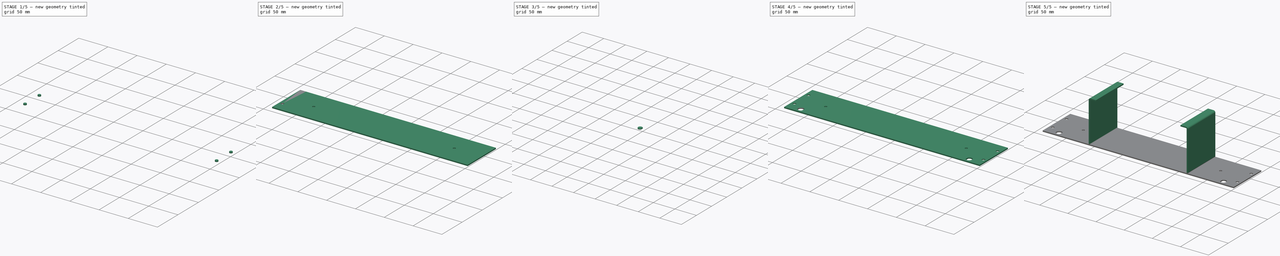
[diagram: build sequence overview — one tinted view per stage of 5, left to right]
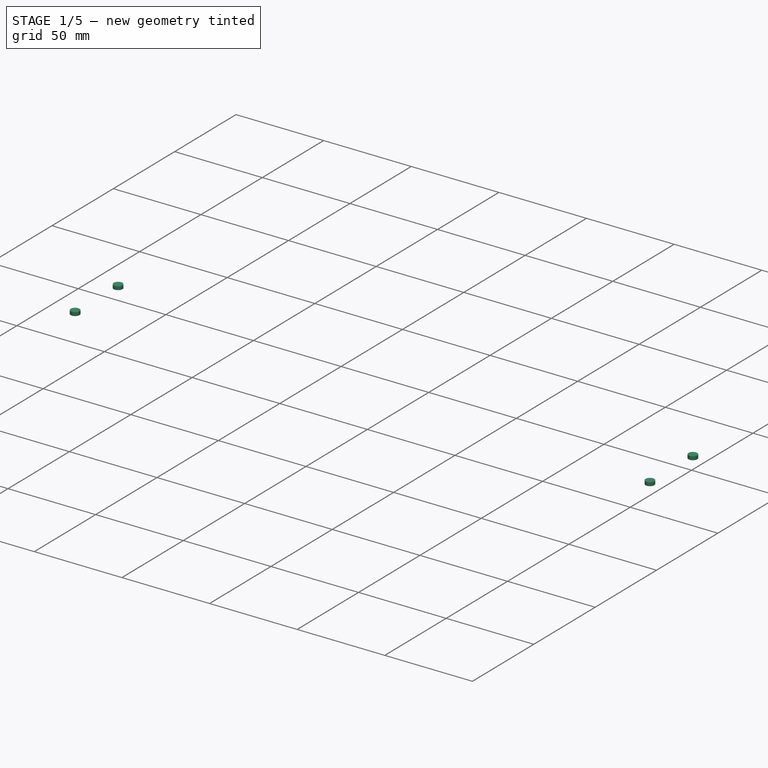
[diagram: stage 1 of 5 — iso view after this stage's code; geometry added in this stage tinted green]
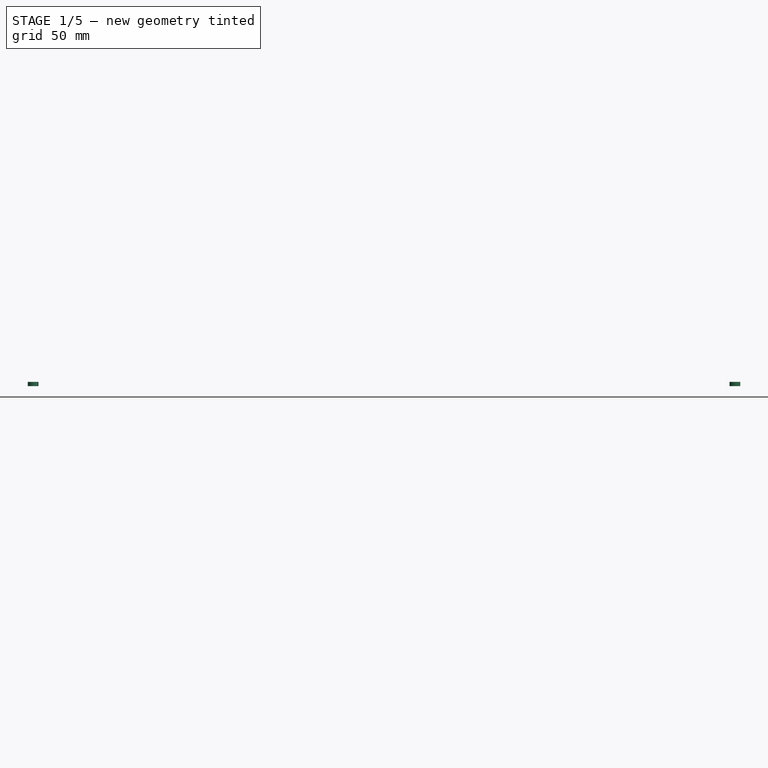
[diagram: stage 1 of 5 — front view after this stage's code; geometry added in this stage tinted green]
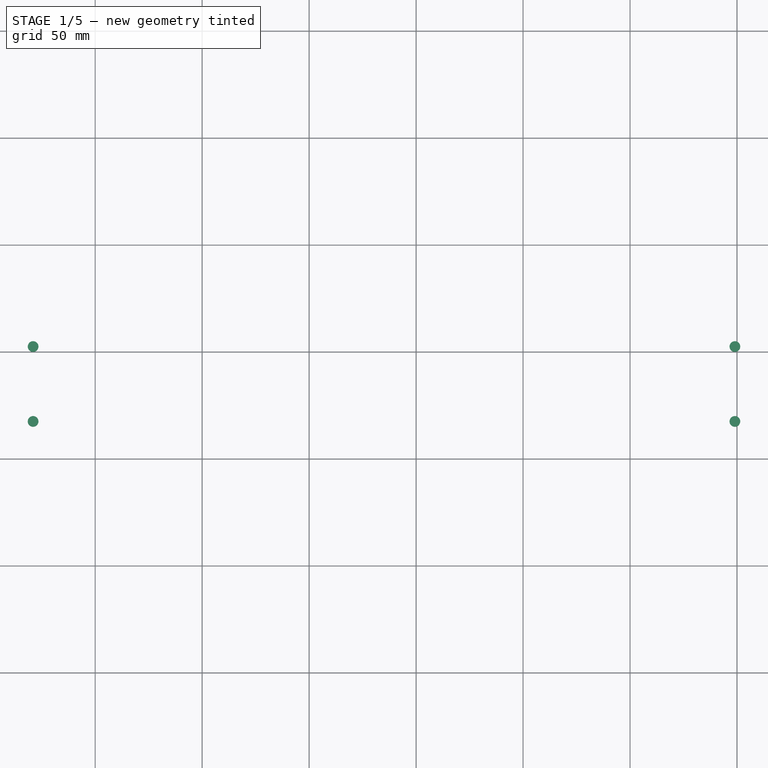
[diagram: stage 1 of 5 — top view after this stage's code; geometry added in this stage tinted green]
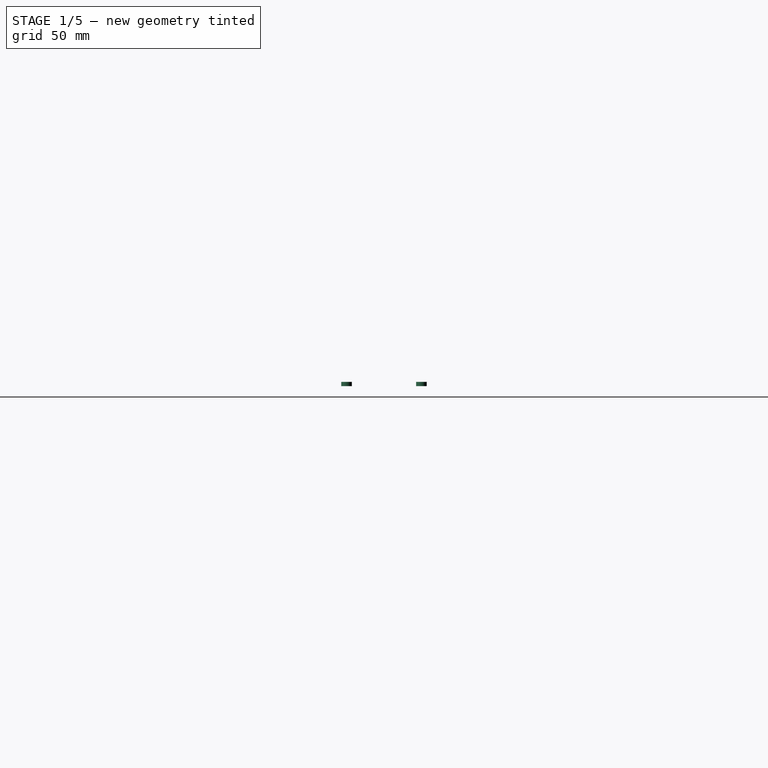
[diagram: stage 1 of 5 — right view after this stage's code; geometry added in this stage tinted green]
FCSTD DOCUMENT  (FreeCAD 0.17R11624 (Git))
Label: cover_base_unfolded_2
License: All rights reserved
LicenseURL: http://en.wikipedia.org/wiki/All_rights_reserved
objects: Drawing::FeatureViewPython×33, Part::Cut×8, Part::Cylinder×6, Part::FeaturePython×4, Sketcher::SketchObject×2, Part::Extrusion×2, Drawing::FeatureViewPart×2, Part::Box×1, Part::Feature×1, Part::Chamfer×1, Drawing::FeaturePage×1
note: 25 computed .brp shape members not serialized (recipe doc carries the construction recipe); baked Part::Feature solids carry a one-line shape summary decoded from their .brp

FEATURE [Part::Cylinder] Cylinder002  label="Top Hole Tool 1"
  Angle = 360
  AttacherType = Attacher::AttachEngine3D
  Height = 2
  Placement = pos=(-79,17.5,0) rot=(0,0,1;0rad)
  Radius = 2.5
FEATURE [Part::Cylinder] Cylinder003  label="Top Hole Tool 2"
  Angle = 360
  AttacherType = Attacher::AttachEngine3D
  Height = 2
  Placement = pos=(-79,52.5,0) rot=(0,0,1;0rad)
  Radius = 2.5
FEATURE [Part::Cylinder] Cylinder004  label="Top Hole Tool 3"
  Angle = 360
  AttacherType = Attacher::AttachEngine3D
  Height = 2
  Placement = pos=(249,17.5,0) rot=(0,0,1;0rad)
  Radius = 2.5
FEATURE [Part::Cylinder] Cylinder005  label="Top Hole Tool 4"
  Angle = 360
  AttacherType = Attacher::AttachEngine3D
  Height = 2
  Placement = pos=(249,52.5,0) rot=(0,0,1;0rad)
  Radius = 2.5
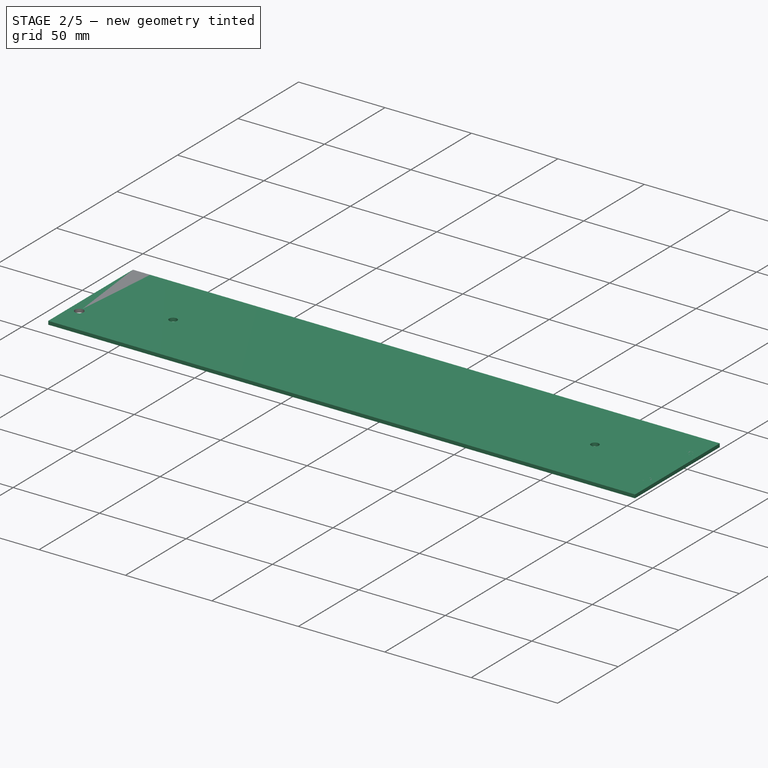
[diagram: stage 2 of 5 — iso view after this stage's code; geometry added in this stage tinted green]
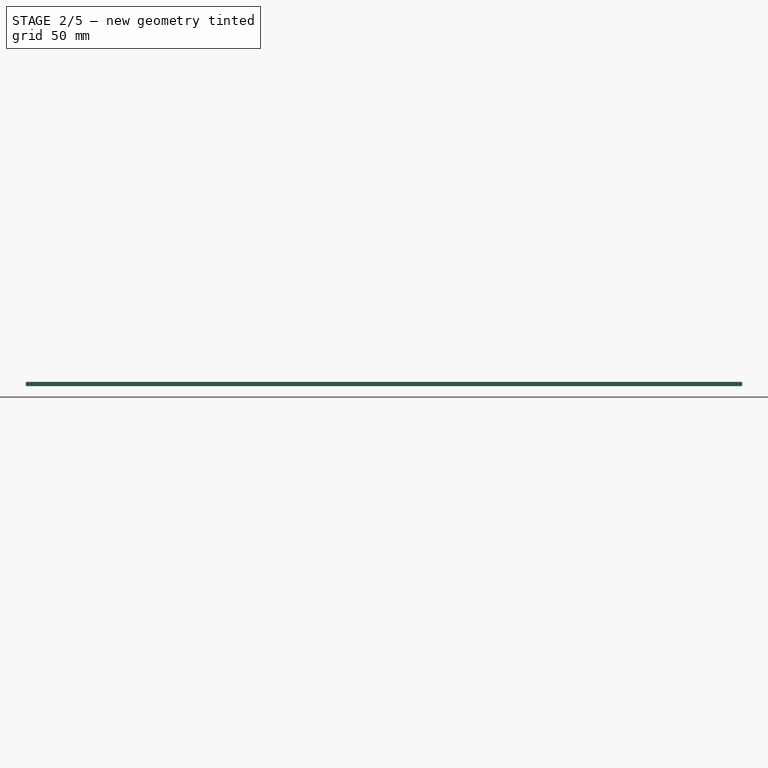
[diagram: stage 2 of 5 — front view after this stage's code; geometry added in this stage tinted green]
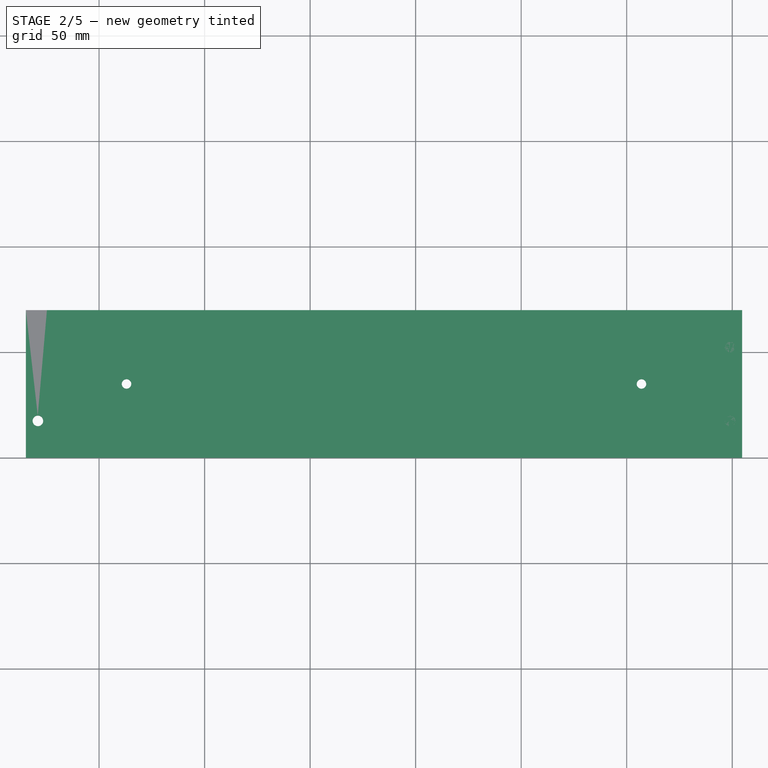
[diagram: stage 2 of 5 — top view after this stage's code; geometry added in this stage tinted green]
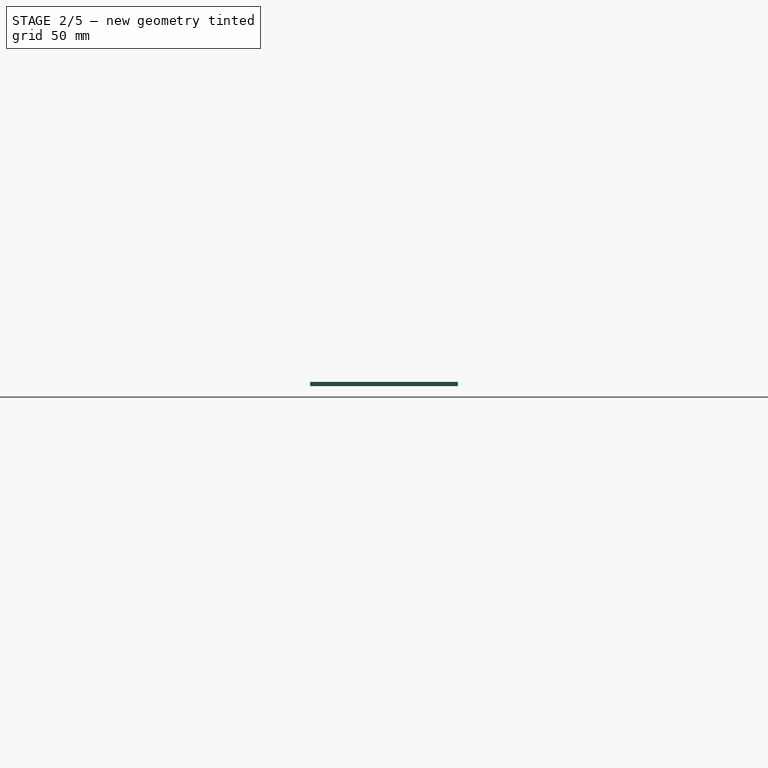
[diagram: stage 2 of 5 — right view after this stage's code; geometry added in this stage tinted green]
FEATURE [Part::Feature] Unfold
  shape: bbox 339.4 x 70 x 2 mm, 38 faces (baked)
FEATURE [Part::Cylinder] Cylinder  label="Core Mounting Hole Tool"
  Angle = 360
  AttacherType = Attacher::AttachEngine3D
  Height = 2
  Placement = pos=(-37,35,0) rot=(0,0,1;0rad)
  Radius = 2.25
FEATURE [Part::Cut] Cut
  Base = -> Unfold
  Tool = -> Cylinder
FEATURE [Part::Cylinder] Cylinder001  label="Core Mounting Hole Tool001"
  Angle = 360
  AttacherType = Attacher::AttachEngine3D
  Height = 2
  Placement = pos=(207,35,0) rot=(0,0,1;0rad)
  Radius = 2.25
FEATURE [Part::Cut] Cut001
  Base = -> Cut
  Tool = -> Cylinder001
FEATURE [Part::Cut] Cut002
  Base = -> Cut001
  Tool = -> Cylinder002
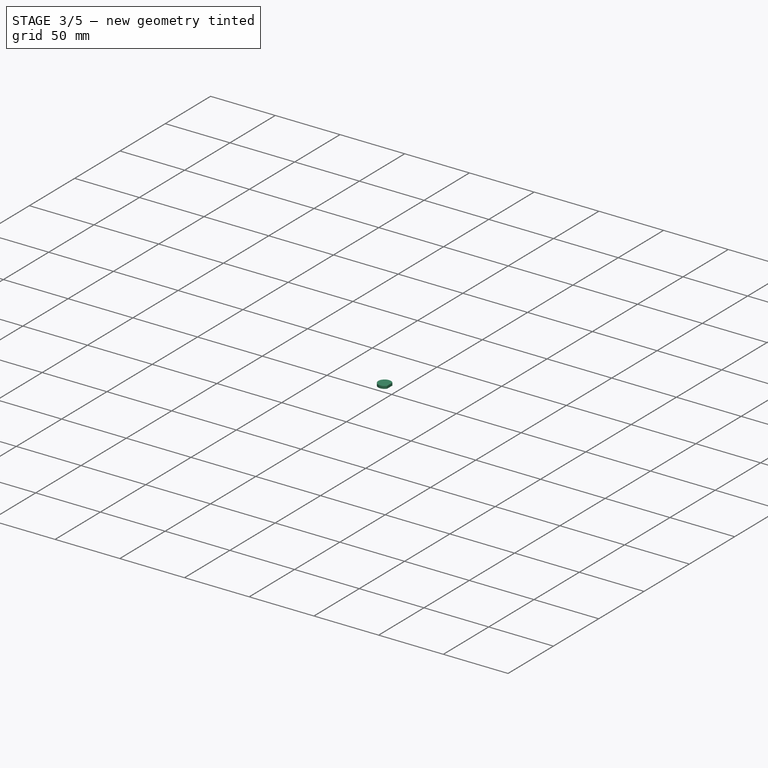
[diagram: stage 3 of 5 — iso view after this stage's code; geometry added in this stage tinted green]
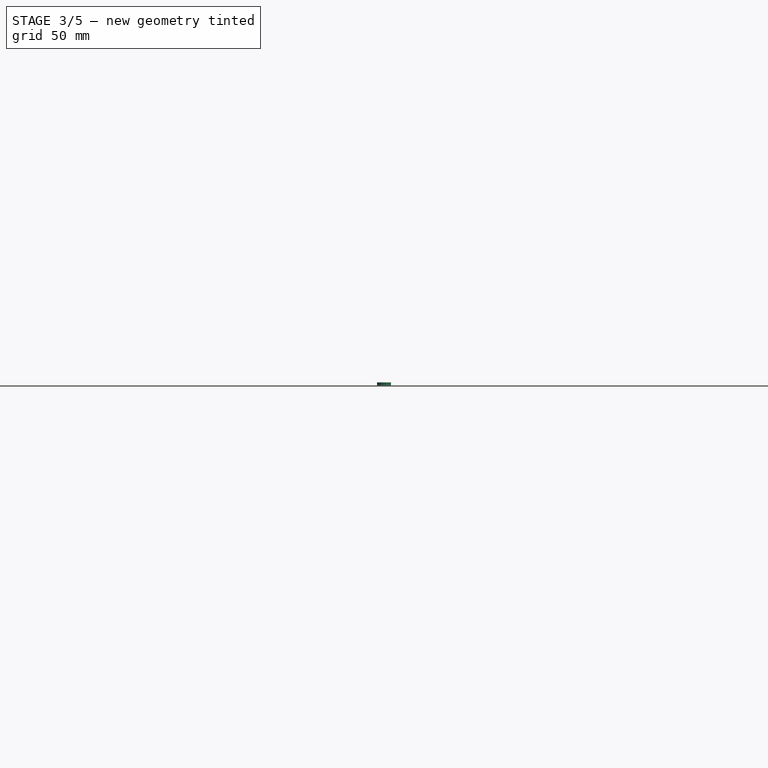
[diagram: stage 3 of 5 — front view after this stage's code; geometry added in this stage tinted green]
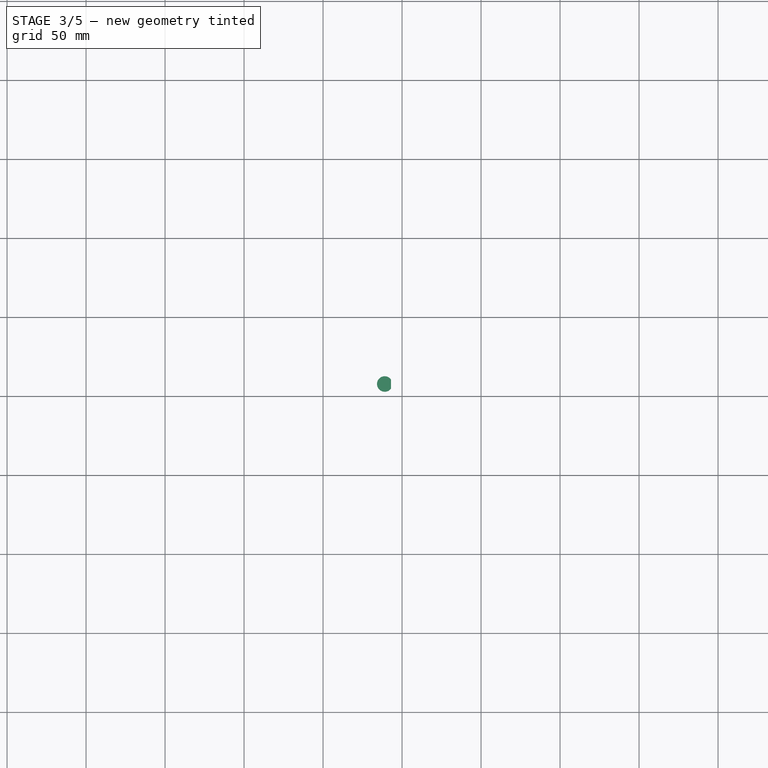
[diagram: stage 3 of 5 — top view after this stage's code; geometry added in this stage tinted green]
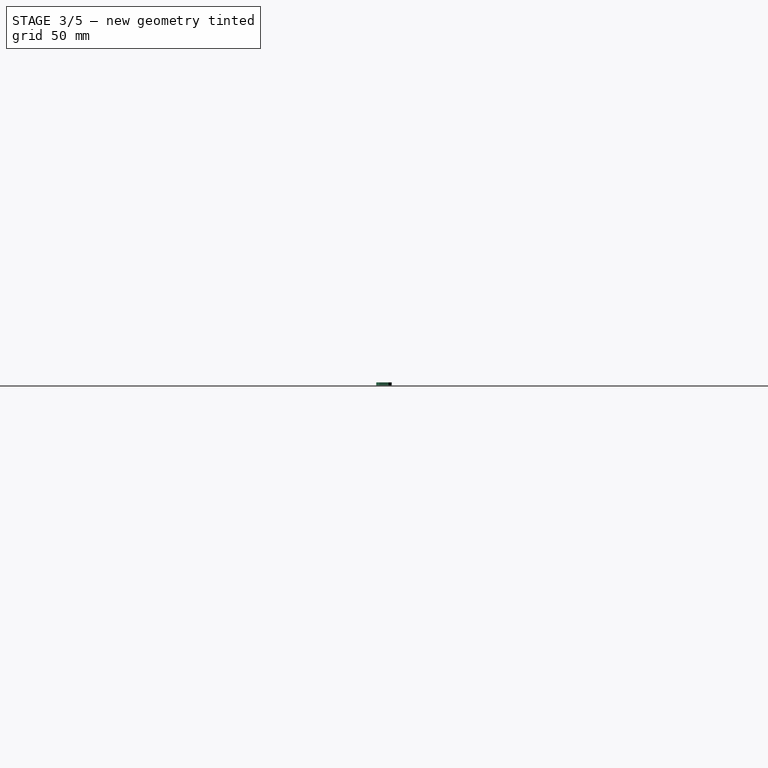
[diagram: stage 3 of 5 — right view after this stage's code; geometry added in this stage tinted green]
FEATURE [Part::Cut] Cut003
  Base = -> Cut002
  Tool = -> Cylinder003
FEATURE [Part::Cut] Cut004
  Base = -> Cut003
  Tool = -> Cylinder004
FEATURE [Part::Cut] Cut005
  Base = -> Cut004
  Tool = -> Cylinder005
FEATURE [Sketcher::SketchObject] Sketch
  MapMode = 5
  Placement = pos=(0,0,2) rot=(0,0,1;0rad)
  Support = -> [Cut005]
  sketch-geometry (2):
    g0: LineSegment StartX=-57 StartY=10.75 StartZ=0 EndX=-57 EndY=5 EndZ=0
    g1: ArcOfCircle CenterX=-60.9679 CenterY=7.875 CenterZ=0 NormalX=0 NormalY=0 NormalZ=1 Radius=4.9 StartAngle=0.627021 EndAngle=5.65616
  constraints (7):
    c: Vertical(g0)
    c: DistanceX(g0,g-1) = 57
    c: DistanceY(g-1,g0) = 5
    c: DistanceY(g-1,g0) = 10.75
    c: Coincident(g1,g0)
    c: Coincident(g0,g1)
    c: Radius(g1) = 4.9
FEATURE [Part::Extrusion] Extrude
  Base = -> Sketch
  Dir = (0,0,1)
  DirMode = 2
  FaceMakerClass = Part::FaceMakerBullseye
  LengthFwd = 2
  LengthRev = 0
  Reversed = true
  Solid = true
  Symmetric = false
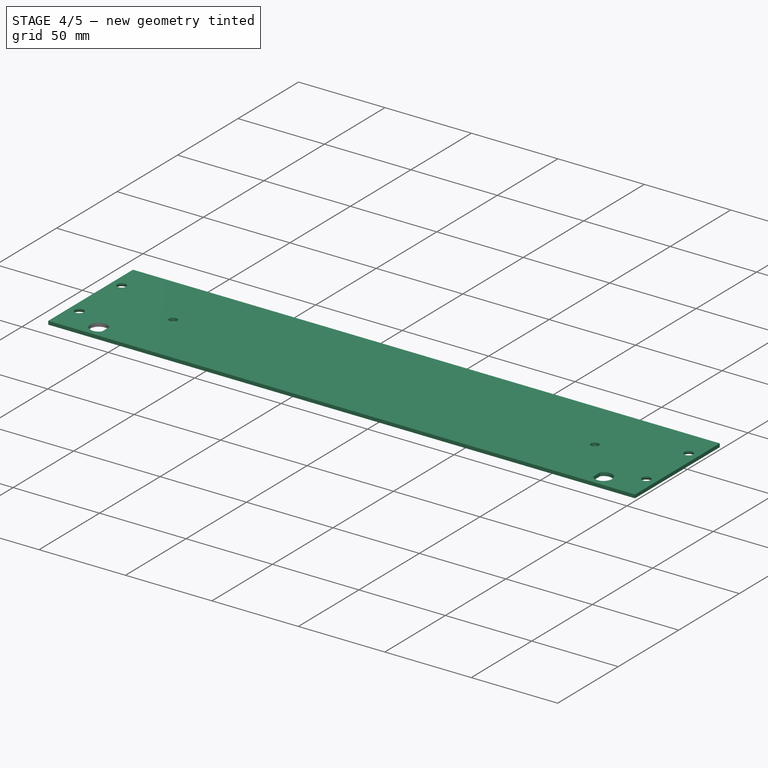
[diagram: stage 4 of 5 — iso view after this stage's code; geometry added in this stage tinted green]
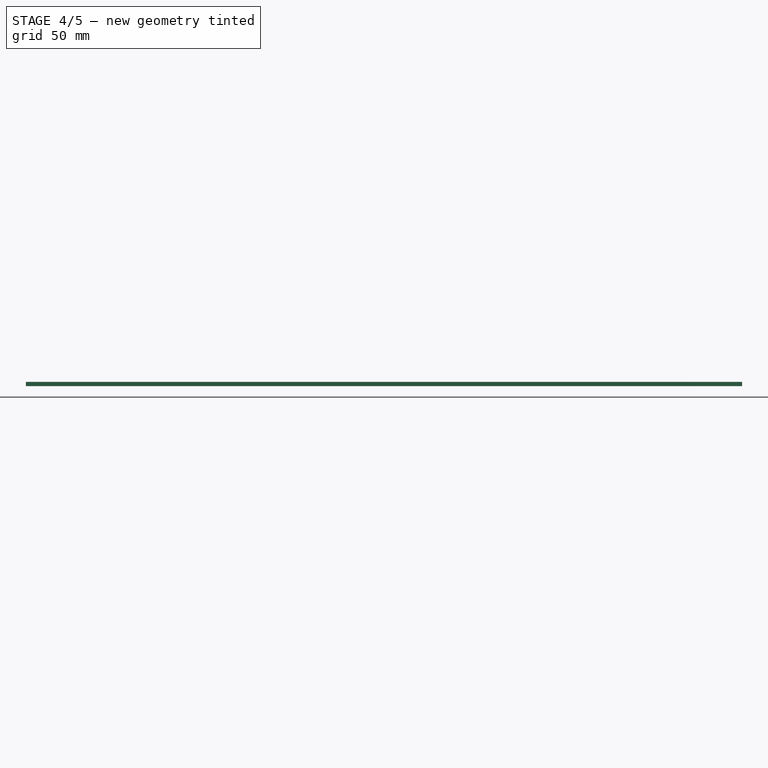
[diagram: stage 4 of 5 — front view after this stage's code; geometry added in this stage tinted green]
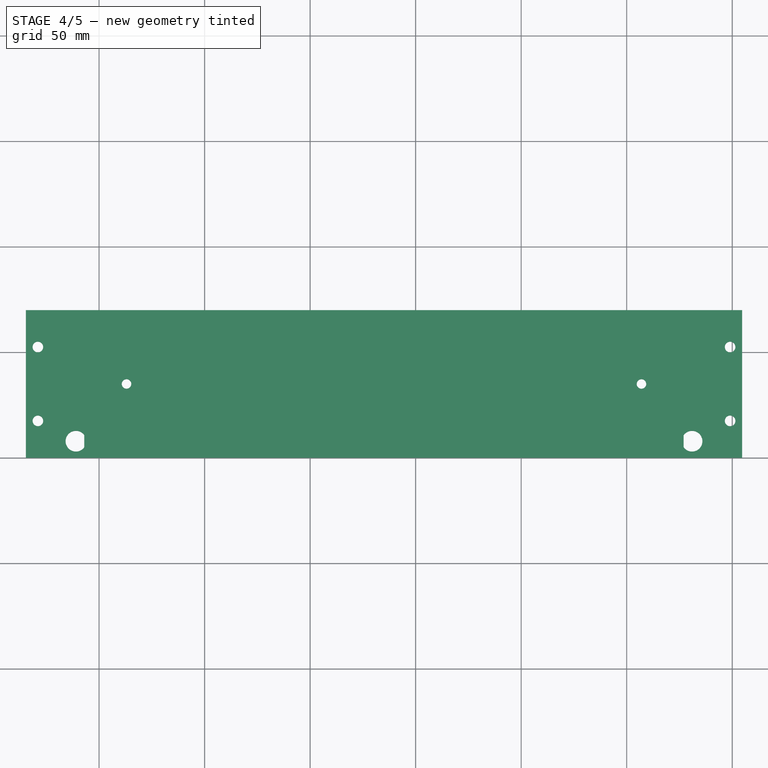
[diagram: stage 4 of 5 — top view after this stage's code; geometry added in this stage tinted green]
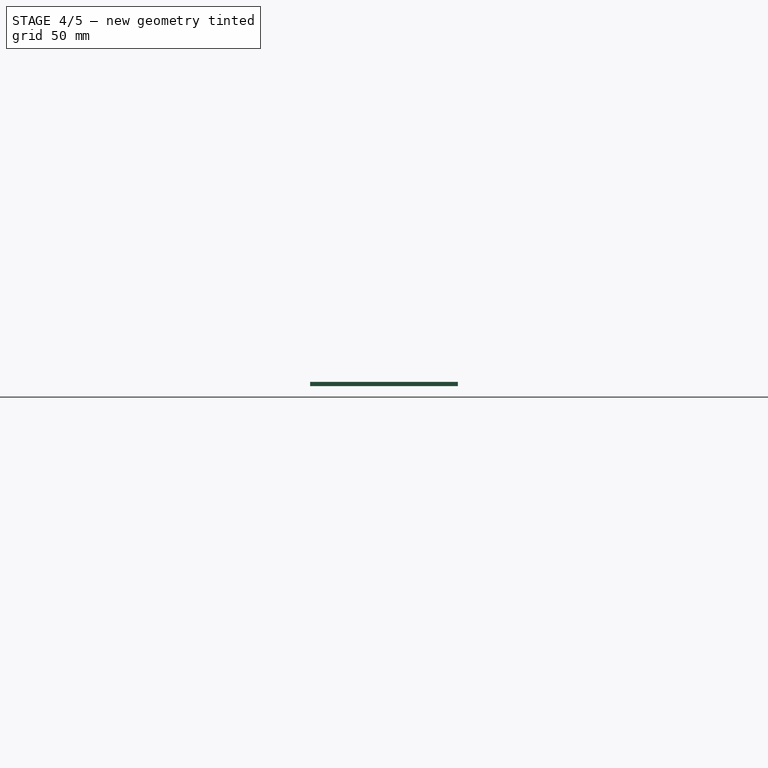
[diagram: stage 4 of 5 — right view after this stage's code; geometry added in this stage tinted green]
FEATURE [Part::Box] Box  label="Cube"
  AttacherType = Attacher::AttachEngine3D
  Height = 2
  Length = 170
  Width = 70
FEATURE [Part::Cut] Cut006
  Base = -> Cut005
  Tool = -> Extrude
FEATURE [Sketcher::SketchObject] Sketch001
  MapMode = 5
  Placement = pos=(0,0,2) rot=(0,0,1;0rad)
  Support = -> [Cut006]
  sketch-geometry (2):
    g0: LineSegment StartX=227 StartY=10.75 StartZ=0 EndX=227 EndY=5 EndZ=0
    g1: ArcOfCircle CenterX=230.968 CenterY=7.875 CenterZ=0 NormalX=0 NormalY=0 NormalZ=1 Radius=4.9 StartAngle=3.76861 EndAngle=8.79776
  constraints (7):
    c: Coincident(g1,g0)
    c: Coincident(g1,g0)
    c: Vertical(g0)
    c: Radius(g1) = 4.9
    c: DistanceX(g-1,g0) = 227
    c: DistanceY(g-1,g0) = 5
    c: DistanceY(g-1,g0) = 10.75
FEATURE [Part::Extrusion] Extrude001
  Base = -> Sketch001
  Dir = (0,0,1)
  DirMode = 2
  FaceMakerClass = Part::FaceMakerBullseye
  LengthFwd = 2
  LengthRev = 0
  Reversed = true
  Solid = true
  Symmetric = false
FEATURE [Part::Cut] Cut007
  Base = -> Cut006
  Tool = -> Extrude001
FEATURE [Drawing::FeatureViewPart] Ortho  label="Ortho_0_0"
  Direction = (1,0,0)
  HiddenWidth = 0.15
  LineWidth = 0.35
  Rotation = -90
  ShowHiddenLines = false
  ShowSmoothLines = false
  Source = -> Cut007
  Tolerance = 0.05
  ViewResult = <blob: 4368 chars omitted>
  Visible = true
  X = 97.5
  Y = 251.57
FEATURE [Drawing::FeatureViewPart] Ortho001  label="Ortho_0_1"
  Direction = (0,0,1)
  HiddenWidth = 0.15
  LineWidth = 0.35
  Rotation = 0
  ShowHiddenLines = false
  ShowSmoothLines = false
  Source = -> Cut007
  Tolerance = 0.05
  ViewResult = <blob: 2049 chars omitted>
  Visible = true
  X = 120
  Y = 120
FEATURE [Drawing::FeatureViewPython] dim001  # drawing view (typed FeaturePython)
  Rotation = 0
  ViewResult = <g> \n  <line x1="95.500000" y1="251.570000" x2="88.299818" y2="251.570000" style="stroke:rgb(0,0,255);stroke-width:0.50" />\n<line x1="95.500000" y1="249.570000" x2="88.299818" y2="249.570000" style="stroke:rgb(0,0,255);stroke-width:0.50" />\n<line x1="89.299818" y1="251.570000" x2="89.299818" y2="249.570000" style="stroke:rgb(0,0,255);stroke-width:0.50" /> \n  <polygon points="89.299818,249.570000 90.299818,246.570000 89.299818,245.570000 88.299818,246.570000" style="fill:rgb(0,0,255);stroke:rgb(0,0,255);stroke-width:0" /><polygon points="89.299818,251.570000 88.299818,254.570000 89.299818,255.570000 90.299818,254.570000" style="fill:rgb(0,0,255);stroke:rgb(0,0,255);stroke-width:0" /> \n  <text x="87.299818" y="250.570000" font-family="inherit" font-size="3.6" fill="rgb(0,0,255)" text-anchor="middle" transform="rotate(-90.000000 87.299818,250.570000)" >2</text> </g>
  Visible = true
  X = 0
  Y = 0
  arrowL1 = 3
  arrowL2 = 1
  arrowW = 2
  arrow_scheme = 0
  autoPlaceOffset = 2
  autoPlaceText = true
  click1_x = 89.2998
  click1_y = 248.957
  click2_x = 89.2998
  click2_y = 248.957
  comma_decimal_place = false
  dimension_line_overshoot = 1
  gap_datum_points = 2
  halfDimension_linear = false
  lineColor = rgb(0,0,255)
  strokeWidth = 0.5
  textFormat_linear = %(value)3.3f
  textRenderer_color = rgb(0,0,255)
  textRenderer_family = inherit
  textRenderer_size = 3.6
  unit_custom_scale = 1
  unit_scheme = 0
FEATURE [Drawing::FeatureViewPython] dim002  # drawing view (typed FeaturePython)
  Rotation = 0
  ViewResult = <g> \n  <line x1="97.500000" y1="247.570000" x2="97.500000" y2="242.003746" style="stroke:rgb(0,0,255);stroke-width:0.50" />\n<line x1="167.500000" y1="247.570000" x2="167.500000" y2="242.003746" style="stroke:rgb(0,0,255);stroke-width:0.50" />\n<line x1="97.500000" y1="243.003746" x2="167.500000" y2="243.003746" style="stroke:rgb(0,0,255);stroke-width:0.50" /> \n  <polygon points="167.500000,243.003746 164.500000,242.003746 163.500000,243.003746 164.500000,244.003746" style="fill:rgb(0,0,255);stroke:rgb(0,0,255);stroke-width:0" /><polygon points="97.500000,243.003746 100.500000,244.003746 101.500000,243.003746 100.500000,242.003746" style="fill:rgb(0,0,255);stroke:rgb(0,0,255);stroke-width:0" /> \n  <text x="132.500000" y="241.003746" font-family="inherit" font-size="3.6" fill="rgb(0,0,255)" text-anchor="middle" transform="rotate(0.000000 132.500000,241.003746)" >70</text> </g>
  Visible = true
  X = 0
  Y = 0
  arrowL1 = 3
  arrowL2 = 1
  arrowW = 2
  arrow_scheme = 0
  autoPlaceOffset = 2
  autoPlaceText = true
  click1_x = 122.043
  click1_y = 243.004
  click2_x = 122.043
  click2_y = 243.004
  comma_decimal_place = false
  dimension_line_overshoot = 1
  gap_datum_points = 2
  halfDimension_linear = false
  lineColor = rgb(0,0,255)
  strokeWidth = 0.5
  textFormat_linear = %(value)3.3f
  textRenderer_color = rgb(0,0,255)
  textRenderer_family = inherit
  textRenderer_size = 3.6
  unit_custom_scale = 1
  unit_scheme = 0
FEATURE [Drawing::FeatureViewPython] bendNote001  # drawing view (typed FeaturePython)
  Rotation = 0
  ViewResult = <g> <line x1="132.924426" y1="145.770064" x2="120.000000" y2="85.000000" style="stroke:rgb(0,0,255);stroke-width:0.50" />\n<polygon points="120.000000,85.000000 119.645951,88.142395 120.832100,88.912494 121.602198,87.726346" style="fill:rgb(0,0,255);stroke:rgb(0,0,255);stroke-width:0" />\n<line x1="132.924426" y1="145.770064" x2="169.785822" y2="145.770064" style="stroke:rgb(0,0,255);stroke-width:0.50" />\n<line x1="169.785822" y1="143.250064" x2="169.785822" y2="148.290064" style="stroke:rgb(0,0,255);stroke-width:0.50" />\n<line x1="174.825822" y1="143.250064" x2="174.825822" y2="148.290064" style="stroke:rgb(0,0,255);stroke-width:0.50" />\n<line x1="169.785822" y1="143.250064" x2="184.275822" y2="143.250064" style="stroke:rgb(0,0,255);stroke-width:0.50" />\n<line x1="169.785822" y1="148.290064" x2="184.275822" y2="148.290064" style="stroke:rgb(0,0,255);stroke-width:0.50" />\n<line x1="184.275822" y1="143.250064" x2="184.275822" y2="148.290064" style="stroke:rgb(0,0,255);stroke-width:0.50" />\n<line x1="170.793822" y1="147.282064" x2="173.817822" y2="147.282064" style="stroke:rgb(0,0,255);stroke-width:0.50" />\n<line x1="170.793822" y1="147.282064" x2="173.817822" y2="144.258064" style="stroke:rgb(0,0,255);stroke-width:0.50" />\n<text x="175.833822" y="147.282064" font-family="inherit" font-size="3.6" fill="rgb(0,0,255)" text-anchor="inherit"  >90°</text> </g> 
  Visible = true
  X = 0
  Y = 0
  angleText = 90°
  arrowL1 = 3
  arrowL2 = 1
  arrowW = 2
  click1_x = 132.924
  click1_y = 145.77
  click2_x = 169.786
  click2_y = 149.68
  lineColor = rgb(0,0,255)
  strokeWidth = 0.5
  textRenderer_color = rgb(0,0,255)
  textRenderer_family = inherit
  textRenderer_size = 3.6
FEATURE [Drawing::FeatureViewPython] bendNote002  # drawing view (typed FeaturePython)
  Rotation = 0
  ViewResult = <g> <line x1="63.376427" y1="146.934175" x2="47.644600" y2="85.000000" style="stroke:rgb(0,0,255);stroke-width:0.50" />\n<polygon points="47.644600,85.000000 47.413951,88.153855 48.629363,88.876886 49.352394,87.661473" style="fill:rgb(0,0,255);stroke:rgb(0,0,255);stroke-width:0" />\n<line x1="63.376427" y1="146.934175" x2="106.217476" y2="146.934175" style="stroke:rgb(0,0,255);stroke-width:0.50" />\n<line x1="106.217476" y1="144.414175" x2="106.217476" y2="149.454175" style="stroke:rgb(0,0,255);stroke-width:0.50" />\n<line x1="111.257476" y1="144.414175" x2="111.257476" y2="149.454175" style="stroke:rgb(0,0,255);stroke-width:0.50" />\n<line x1="106.217476" y1="144.414175" x2="120.707476" y2="144.414175" style="stroke:rgb(0,0,255);stroke-width:0.50" />\n<line x1="106.217476" y1="149.454175" x2="120.707476" y2="149.454175" style="stroke:rgb(0,0,255);stroke-width:0.50" />\n<line x1="120.707476" y1="144.414175" x2="120.707476" y2="149.454175" style="stroke:rgb(0,0,255);stroke-width:0.50" />\n<line x1="107.225476" y1="148.446175" x2="110.249476" y2="148.446175" style="stroke:rgb(0,0,255);stroke-width:0.50" />\n<line x1="107.225476" y1="148.446175" x2="110.249476" y2="145.422175" style="stroke:rgb(0,0,255);stroke-width:0.50" />\n<text x="112.265476" y="148.446175" font-family="inherit" font-size="3.6" fill="rgb(0,0,255)" text-anchor="inherit"  >90°</text> </g> 
  Visible = true
  X = 0
  Y = 0
  angleText = 90°
  arrowL1 = 3
  arrowL2 = 1
  arrowW = 2
  click1_x = 63.3764
  click1_y = 146.934
  click2_x = 106.217
  click2_y = 148.35
  lineColor = rgb(0,0,255)
  strokeWidth = 0.5
  textRenderer_color = rgb(0,0,255)
  textRenderer_family = inherit
  textRenderer_size = 3.6
FEATURE [Drawing::FeatureViewPython] bendNote003  # drawing view (typed FeaturePython)
  Rotation = 0
  ViewResult = <g> <line x1="278.997904" y1="146.580117" x2="290.000000" y2="85.000000" style="stroke:rgb(0,0,255);stroke-width:0.50" />\n<polygon points="290.000000,85.000000 288.487954,87.777358 289.296488,88.937648 290.456778,88.129114" style="fill:rgb(0,0,255);stroke:rgb(0,0,255);stroke-width:0" />\n<line x1="278.997904" y1="146.580117" x2="317.590253" y2="146.580117" style="stroke:rgb(0,0,255);stroke-width:0.50" />\n<line x1="317.590253" y1="144.060117" x2="317.590253" y2="149.100117" style="stroke:rgb(0,0,255);stroke-width:0.50" />\n<line x1="322.630253" y1="144.060117" x2="322.630253" y2="149.100117" style="stroke:rgb(0,0,255);stroke-width:0.50" />\n<line x1="317.590253" y1="144.060117" x2="332.080253" y2="144.060117" style="stroke:rgb(0,0,255);stroke-width:0.50" />\n<line x1="317.590253" y1="149.100117" x2="332.080253" y2="149.100117" style="stroke:rgb(0,0,255);stroke-width:0.50" />\n<line x1="332.080253" y1="144.060117" x2="332.080253" y2="149.100117" style="stroke:rgb(0,0,255);stroke-width:0.50" />\n<line x1="318.598253" y1="148.092117" x2="321.622253" y2="148.092117" style="stroke:rgb(0,0,255);stroke-width:0.50" />\n<line x1="318.598253" y1="148.092117" x2="321.622253" y2="145.068117" style="stroke:rgb(0,0,255);stroke-width:0.50" />\n<text x="323.638253" y="148.092117" font-family="inherit" font-size="3.6" fill="rgb(0,0,255)" text-anchor="inherit"  >90°</text> </g> 
  Visible = true
  X = 0
  Y = 0
  angleText = 90°
  arrowL1 = 3
  arrowL2 = 1
  arrowW = 2
  click1_x = 278.998
  click1_y = 146.58
  click2_x = 317.59
  click2_y = 154.723
  lineColor = rgb(0,0,255)
  strokeWidth = 0.5
  textRenderer_color = rgb(0,0,255)
  textRenderer_family = inherit
  textRenderer_size = 3.6
FEATURE [Drawing::FeatureViewPython] bendNote004  # drawing view (typed FeaturePython)
  Rotation = 0
  ViewResult = <g> <line x1="351.579846" y1="145.872000" x2="362.355000" y2="85.000000" style="stroke:rgb(0,0,255);stroke-width:0.50" />\n<polygon points="362.355000,85.000000 360.847397,87.779772 361.657786,88.938768 362.816781,88.128379" style="fill:rgb(0,0,255);stroke:rgb(0,0,255);stroke-width:0" />\n<line x1="351.579846" y1="145.872000" x2="394.774953" y2="145.872000" style="stroke:rgb(0,0,255);stroke-width:0.50" />\n<line x1="394.774953" y1="143.352000" x2="394.774953" y2="148.392000" style="stroke:rgb(0,0,255);stroke-width:0.50" />\n<line x1="399.814953" y1="143.352000" x2="399.814953" y2="148.392000" style="stroke:rgb(0,0,255);stroke-width:0.50" />\n<line x1="394.774953" y1="143.352000" x2="409.264953" y2="143.352000" style="stroke:rgb(0,0,255);stroke-width:0.50" />\n<line x1="394.774953" y1="148.392000" x2="409.264953" y2="148.392000" style="stroke:rgb(0,0,255);stroke-width:0.50" />\n<line x1="409.264953" y1="143.352000" x2="409.264953" y2="148.392000" style="stroke:rgb(0,0,255);stroke-width:0.50" />\n<line x1="395.782953" y1="147.384000" x2="398.806953" y2="147.384000" style="stroke:rgb(0,0,255);stroke-width:0.50" />\n<line x1="395.782953" y1="147.384000" x2="398.806953" y2="144.360000" style="stroke:rgb(0,0,255);stroke-width:0.50" />\n<text x="400.822953" y="147.384000" font-family="inherit" font-size="3.6" fill="rgb(0,0,255)" text-anchor="inherit"  >90°</text> </g> 
  Visible = true
  X = 0
  Y = 0
  angleText = 90°
  arrowL1 = 3
  arrowL2 = 1
  arrowW = 2
  click1_x = 351.58
  click1_y = 145.872
  click2_x = 394.775
  click2_y = 147.288
  lineColor = rgb(0,0,255)
  strokeWidth = 0.5
  textRenderer_color = rgb(0,0,255)
  textRenderer_family = inherit
  textRenderer_size = 3.6
FEATURE [Drawing::FeatureViewPython] text001  # drawing view (typed FeaturePython)
  Rotation = 0
  ViewResult = <g> <text x="68.828924" y="143.606028" font-family="inherit" font-size="5" fill="rgb(0,0,0)" text-anchor="inherit" transform="rotate(0.000000 68.828924,143.606028)" >Up</text> </g>
  Visible = true
  X = 0
  Y = 0
  click1_x = 68.8289
  click1_y = 143.606
  rotation = 0
  text = Up
  textRenderer_addText_color = rgb(0,0,0)
  textRenderer_addText_family = inherit
  textRenderer_addText_size = 5
FEATURE [Drawing::FeatureViewPython] text002  # drawing view (typed FeaturePython)
  Rotation = 0
  ViewResult = <g> <text x="135.958369" y="142.331418" font-family="inherit" font-size="5" fill="rgb(0,0,0)" text-anchor="inherit" transform="rotate(0.000000 135.958369,142.331418)" >Up</text> </g>
  Visible = true
  X = 0
  Y = 0
  click1_x = 135.958
  click1_y = 142.331
  rotation = 0
  text = Up
  textRenderer_addText_color = rgb(0,0,0)
  textRenderer_addText_family = inherit
  textRenderer_addText_size = 5
FEATURE [Drawing::FeatureViewPython] text003  # drawing view (typed FeaturePython)
  Rotation = 0
  ViewResult = <g> <text x="284.662836" y="142.331418" font-family="inherit" font-size="5" fill="rgb(0,0,0)" text-anchor="inherit" transform="rotate(0.000000 284.662836,142.331418)" >Up</text> </g>
  Visible = true
  X = 0
  Y = 0
  click1_x = 284.663
  click1_y = 142.331
  rotation = 0
  text = Up
  textRenderer_addText_color = rgb(0,0,0)
  textRenderer_addText_family = inherit
  textRenderer_addText_size = 5
FEATURE [Drawing::FeatureViewPython] text004  # drawing view (typed FeaturePython)
  Rotation = 0
  ViewResult = <g> <text x="358.165329" y="141.906548" font-family="inherit" font-size="5" fill="rgb(0,0,0)" text-anchor="inherit" transform="rotate(0.000000 358.165329,141.906548)" >Up</text> </g>
  Visible = true
  X = 0
  Y = 0
  click1_x = 358.165
  click1_y = 141.907
  rotation = 0
  text = Up
  textRenderer_addText_color = rgb(0,0,0)
  textRenderer_addText_family = inherit
  textRenderer_addText_size = 5
FEATURE [Drawing::FeatureViewPython] text005  # drawing view (typed FeaturePython)
  Rotation = 0
  ViewResult = <g> <text x="67.554315" y="153.802905" font-family="inherit" font-size="5" fill="rgb(0,0,0)" text-anchor="inherit" transform="rotate(0.000000 67.554315,153.802905)" >Bend Radius 1.0</text> </g>
  Visible = true
  X = 0
  Y = 0
  click1_x = 67.5543
  click1_y = 153.803
  rotation = 0
  text = Bend Radius 1.0
  textRenderer_addText_color = rgb(0,0,0)
  textRenderer_addText_family = inherit
  textRenderer_addText_size = 5
FEATURE [Drawing::FeatureViewPython] text006  # drawing view (typed FeaturePython)
  Rotation = 0
  ViewResult = <g> <text x="132.559410" y="151.678556" font-family="inherit" font-size="5" fill="rgb(0,0,0)" text-anchor="inherit" transform="rotate(0.000000 132.559410,151.678556)" >Bend Radius 1.0</text> </g>
  Visible = true
  X = 0
  Y = 0
  click1_x = 132.559
  click1_y = 151.679
  rotation = 0
  text = Bend Radius 1.0
  textRenderer_addText_color = rgb(0,0,0)
  textRenderer_addText_family = inherit
  textRenderer_addText_size = 5
FEATURE [Drawing::FeatureViewPython] text007  # drawing view (typed FeaturePython)
  Rotation = 0
  ViewResult = <g> <text x="279.139527" y="152.528296" font-family="inherit" font-size="5" fill="rgb(0,0,0)" text-anchor="inherit" transform="rotate(0.000000 279.139527,152.528296)" >Bend Radius 1.0</text> </g>
  Visible = true
  X = 0
  Y = 0
  click1_x = 279.14
  click1_y = 152.528
  rotation = 0
  text = Bend Radius 1.0
  textRenderer_addText_color = rgb(0,0,0)
  textRenderer_addText_family = inherit
  textRenderer_addText_size = 5
FEATURE [Drawing::FeatureViewPython] text008  # drawing view (typed FeaturePython)
  Rotation = 0
  ViewResult = <g> <text x="355.191240" y="150.828816" font-family="inherit" font-size="5" fill="rgb(0,0,0)" text-anchor="inherit" transform="rotate(0.000000 355.191240,150.828816)" >Bend Radius 1.0</text> </g>
  Visible = true
  X = 0
  Y = 0
  click1_x = 355.191
  click1_y = 150.829
  rotation = 0
  text = Bend Radius 1.0
  textRenderer_addText_color = rgb(0,0,0)
  textRenderer_addText_family = inherit
  textRenderer_addText_size = 5
FEATURE [Drawing::FeatureViewPython] dim007  # drawing view (typed FeaturePython)
  Rotation = 0
  ViewResult = <g> <line x1="35.289200" y1="122.000000" x2="35.289200" y2="180.465048" style="stroke:rgb(0,0,255);stroke-width:0.50" />\n<line x1="374.711000" y1="122.000000" x2="374.711000" y2="180.465048" style="stroke:rgb(0,0,255);stroke-width:0.50" />\n<line x1="35.289200" y1="179.465048" x2="374.711000" y2="179.465048" style="stroke:rgb(0,0,255);stroke-width:0.50" />\n<polygon points="35.289200,179.465048 38.289200,180.465048 39.289200,179.465048 38.289200,178.465048" style="fill:rgb(0,0,255);stroke:rgb(0,0,255);stroke-width:0" />\n<polygon points="374.711000,179.465048 371.711000,178.465048 370.711000,179.465048 371.711000,180.465048" style="fill:rgb(0,0,255);stroke:rgb(0,0,255);stroke-width:0" />\n<text x="205.000100" y="177.465048" font-family="inherit" font-size="3.6" fill="rgb(0,0,255)" text-anchor="middle" transform="rotate(0.000000 205.000100,177.465048)" >339.422</text> </g> 
  Visible = true
  X = 0
  Y = 0
  arrowL1 = 3
  arrowL2 = 1
  arrowW = 2
  arrow_scheme = 0
  autoPlaceOffset = 2
  autoPlaceText = true
  click1_x = 376.265
  click1_y = 179.465
  click2_x = 376.265
  click2_y = 179.465
  comma_decimal_place = false
  dimension_line_overshoot = 1
  gap_datum_points = 2
  halfDimension_linear = false
  lineColor = rgb(0,0,255)
  strokeWidth = 0.5
  textFormat_linear = %(value)3.3f
  textRenderer_color = rgb(0,0,255)
  textRenderer_family = inherit
  textRenderer_size = 3.6
  unit_custom_scale = 1
  unit_scheme = 0
FEATURE [Drawing::FeatureViewPython] text009  # drawing view (typed FeaturePython)
  Rotation = 0
  ViewResult = <g> <text x="287.551951" y="265.118820" font-family="inherit" font-size="5" fill="rgb(0,0,0)" text-anchor="inherit" transform="rotate(0.000000 287.551951,265.118820)" >Research Division, Quazar</text> </g>
  Visible = true
  X = 0
  Y = 0
  click1_x = 287.552
  click1_y = 265.119
  rotation = 0
  text = Research Division, Quazar
  textRenderer_addText_color = rgb(0,0,0)
  textRenderer_addText_family = inherit
  textRenderer_addText_size = 5
FEATURE [Drawing::FeatureViewPython] text010  # drawing view (typed FeaturePython)
  Rotation = 0
  ViewResult = <g> <text x="297.238985" y="241.156158" font-family="inherit" font-size="7" fill="rgb(0,0,0)" text-anchor="inherit" transform="rotate(0.000000 297.238985,241.156158)" >EM Coupling Experiment</text> </g>
  Visible = true
  X = 0
  Y = 0
  click1_x = 297.239
  click1_y = 241.156
  rotation = 0
  text = EM Coupling Experiment
  textRenderer_addText_color = rgb(0,0,0)
  textRenderer_addText_family = inherit
  textRenderer_addText_size = 7
FEATURE [Drawing::FeatureViewPython] text011  # drawing view (typed FeaturePython)
  Rotation = 0
  ViewResult = <g> <text x="303.866955" y="249.313660" font-family="inherit" font-size="5" fill="rgb(0,0,0)" text-anchor="inherit" transform="rotate(0.000000 303.866955,249.313660)" >Cover Base - Folding</text> </g>
  Visible = true
  X = 0
  Y = 0
  click1_x = 303.867
  click1_y = 249.314
  rotation = 0
  text = Cover Base - Folding
  textRenderer_addText_color = rgb(0,0,0)
  textRenderer_addText_family = inherit
  textRenderer_addText_size = 5
FEATURE [Drawing::FeatureViewPython] text012  # drawing view (typed FeaturePython)
  Rotation = 0
  ViewResult = <g> <text x="268.687727" y="223.821466" font-family="inherit" font-size="5" fill="rgb(0,0,0)" text-anchor="inherit" transform="rotate(0.000000 268.687727,223.821466)" >Sheet Thickness - 2.00 mm</text> </g>
  Visible = true
  X = 0
  Y = 0
  click1_x = 268.688
  click1_y = 223.821
  rotation = 0
  text = Sheet Thickness - 2.00 mm
  textRenderer_addText_color = rgb(0,0,0)
  textRenderer_addText_family = inherit
  textRenderer_addText_size = 5
FEATURE [Drawing::FeatureViewPython] dim008  # drawing view (typed FeaturePython)
  Rotation = 0
  ViewResult = <g> \n  <line x1="117.644610" y1="122.000000" x2="117.644610" y2="130.624164" style="stroke:rgb(0,0,255);stroke-width:0.50" />\n<line x1="47.644600" y1="122.000000" x2="47.644600" y2="130.624164" style="stroke:rgb(0,0,255);stroke-width:0.50" />\n<line x1="117.644610" y1="129.624164" x2="47.644600" y2="129.624164" style="stroke:rgb(0,0,255);stroke-width:0.50" /> \n  <polygon points="47.644600,129.624164 50.644600,130.624164 51.644600,129.624164 50.644600,128.624164" style="fill:rgb(0,0,255);stroke:rgb(0,0,255);stroke-width:0" /><polygon points="117.644610,129.624164 114.644610,128.624164 113.644610,129.624164 114.644610,130.624164" style="fill:rgb(0,0,255);stroke:rgb(0,0,255);stroke-width:0" /> \n  <text x="82.644605" y="127.624164" font-family="inherit" font-size="3.6" fill="rgb(0,0,255)" text-anchor="middle" transform="rotate(0.000000 82.644605,127.624164)" >70</text> </g>
  Visible = true
  X = 0
  Y = 0
  arrowL1 = 3
  arrowL2 = 1
  arrowW = 2
  arrow_scheme = 0
  autoPlaceOffset = 2
  autoPlaceText = true
  click1_x = 75.8276
  click1_y = 129.624
  click2_x = 75.8276
  click2_y = 129.624
  comma_decimal_place = false
  dimension_line_overshoot = 1
  gap_datum_points = 2
  halfDimension_linear = false
  lineColor = rgb(0,0,255)
  strokeWidth = 0.5
  textFormat_linear = %(value)3.3f
  textRenderer_color = rgb(0,0,255)
  textRenderer_family = inherit
  textRenderer_size = 3.6
  unit_custom_scale = 1
  unit_scheme = 0
FEATURE [Drawing::FeatureViewPython] dim009  # drawing view (typed FeaturePython)
  Rotation = 0
  ViewResult = <g> \n  <line x1="120.000000" y1="122.000000" x2="120.000000" y2="130.111815" style="stroke:rgb(0,0,255);stroke-width:0.50" />\n<line x1="290.000000" y1="122.000000" x2="290.000000" y2="130.111815" style="stroke:rgb(0,0,255);stroke-width:0.50" />\n<line x1="120.000000" y1="129.111815" x2="290.000000" y2="129.111815" style="stroke:rgb(0,0,255);stroke-width:0.50" /> \n  <polygon points="290.000000,129.111815 287.000000,128.111815 286.000000,129.111815 287.000000,130.111815" style="fill:rgb(0,0,255);stroke:rgb(0,0,255);stroke-width:0" /><polygon points="120.000000,129.111815 123.000000,130.111815 124.000000,129.111815 123.000000,128.111815" style="fill:rgb(0,0,255);stroke:rgb(0,0,255);stroke-width:0" /> \n  <text x="205.000000" y="127.111815" font-family="inherit" font-size="3.6" fill="rgb(0,0,255)" text-anchor="middle" transform="rotate(0.000000 205.000000,127.111815)" >170</text> </g>
  Visible = true
  X = 0
  Y = 0
  arrowL1 = 3
  arrowL2 = 1
  arrowW = 2
  arrow_scheme = 0
  autoPlaceOffset = 2
  autoPlaceText = true
  click1_x = 172.149
  click1_y = 129.112
  click2_x = 172.149
  click2_y = 129.112
  comma_decimal_place = false
  dimension_line_overshoot = 1
  gap_datum_points = 2
  halfDimension_linear = false
  lineColor = rgb(0,0,255)
  strokeWidth = 0.5
  textFormat_linear = %(value)3.3f
  textRenderer_color = rgb(0,0,255)
  textRenderer_family = inherit
  textRenderer_size = 3.6
  unit_custom_scale = 1
  unit_scheme = 0
FEATURE [Drawing::FeatureViewPython] dim010  # drawing view (typed FeaturePython)
  Rotation = 0
  ViewResult = <g> \n  <line x1="292.355000" y1="122.000000" x2="292.355000" y2="130.111815" style="stroke:rgb(0,0,255);stroke-width:0.50" />\n<line x1="362.355000" y1="122.000000" x2="362.355000" y2="130.111815" style="stroke:rgb(0,0,255);stroke-width:0.50" />\n<line x1="292.355000" y1="129.111815" x2="362.355000" y2="129.111815" style="stroke:rgb(0,0,255);stroke-width:0.50" /> \n  <polygon points="362.355000,129.111815 359.355000,128.111815 358.355000,129.111815 359.355000,130.111815" style="fill:rgb(0,0,255);stroke:rgb(0,0,255);stroke-width:0" /><polygon points="292.355000,129.111815 295.355000,130.111815 296.355000,129.111815 295.355000,128.111815" style="fill:rgb(0,0,255);stroke:rgb(0,0,255);stroke-width:0" /> \n  <text x="327.355000" y="127.111815" font-family="inherit" font-size="3.6" fill="rgb(0,0,255)" text-anchor="middle" transform="rotate(0.000000 327.355000,127.111815)" >70</text> </g>
  Visible = true
  X = 0
  Y = 0
  arrowL1 = 3
  arrowL2 = 1
  arrowW = 2
  arrow_scheme = 0
  autoPlaceOffset = 2
  autoPlaceText = true
  click1_x = 323.804
  click1_y = 129.112
  click2_x = 323.804
  click2_y = 129.112
  comma_decimal_place = false
  dimension_line_overshoot = 1
  gap_datum_points = 2
  halfDimension_linear = false
  lineColor = rgb(0,0,255)
  strokeWidth = 0.5
  textFormat_linear = %(value)3.3f
  textRenderer_color = rgb(0,0,255)
  textRenderer_family = inherit
  textRenderer_size = 3.6
  unit_custom_scale = 1
  unit_scheme = 0
FEATURE [Drawing::FeatureViewPython] dim011  # drawing view (typed FeaturePython)
  Rotation = 0
  ViewResult = <g> \n  <line x1="364.711000" y1="122.000000" x2="364.711000" y2="129.599467" style="stroke:rgb(0,0,255);stroke-width:0.50" />\n<line x1="374.711000" y1="122.000000" x2="374.711000" y2="129.599467" style="stroke:rgb(0,0,255);stroke-width:0.50" />\n<line x1="364.711000" y1="128.599467" x2="374.711000" y2="128.599467" style="stroke:rgb(0,0,255);stroke-width:0.50" /> \n  <polygon points="374.711000,128.599467 377.711000,129.599467 378.711000,128.599467 377.711000,127.599467" style="fill:rgb(0,0,255);stroke:rgb(0,0,255);stroke-width:0" /><polygon points="364.711000,128.599467 361.711000,127.599467 360.711000,128.599467 361.711000,129.599467" style="fill:rgb(0,0,255);stroke:rgb(0,0,255);stroke-width:0" /> \n  <text x="369.711000" y="126.599467" font-family="inherit" font-size="3.6" fill="rgb(0,0,255)" text-anchor="middle" transform="rotate(0.000000 369.711000,126.599467)" >10</text> </g>
  Visible = true
  X = 0
  Y = 0
  arrowL1 = 3
  arrowL2 = 1
  arrowW = 2
  arrow_scheme = 0
  autoPlaceOffset = 2
  autoPlaceText = true
  click1_x = 372.477
  click1_y = 128.599
  click2_x = 372.477
  click2_y = 128.599
  comma_decimal_place = false
  dimension_line_overshoot = 1
  gap_datum_points = 2
  halfDimension_linear = false
  lineColor = rgb(0,0,255)
  strokeWidth = 0.5
  textFormat_linear = %(value)3.3f
  textRenderer_color = rgb(0,0,255)
  textRenderer_family = inherit
  textRenderer_size = 3.6
  unit_custom_scale = 1
  unit_scheme = 0
FEATURE [Drawing::FeatureViewPython] dim012  # drawing view (typed FeaturePython)
  Rotation = 0
  ViewResult = <g> \n  <line x1="45.289200" y1="122.000000" x2="45.289200" y2="130.111815" style="stroke:rgb(0,0,255);stroke-width:0.50" />\n<line x1="35.289200" y1="122.000000" x2="35.289200" y2="130.111815" style="stroke:rgb(0,0,255);stroke-width:0.50" />\n<line x1="45.289200" y1="129.111815" x2="35.289200" y2="129.111815" style="stroke:rgb(0,0,255);stroke-width:0.50" /> \n  <polygon points="35.289200,129.111815 32.289200,128.111815 31.289200,129.111815 32.289200,130.111815" style="fill:rgb(0,0,255);stroke:rgb(0,0,255);stroke-width:0" /><polygon points="45.289200,129.111815 48.289200,130.111815 49.289200,129.111815 48.289200,128.111815" style="fill:rgb(0,0,255);stroke:rgb(0,0,255);stroke-width:0" /> \n  <text x="40.289200" y="127.111815" font-family="inherit" font-size="3.6" fill="rgb(0,0,255)" text-anchor="middle" transform="rotate(0.000000 40.289200,127.111815)" >10</text> </g>
  Visible = true
  X = 0
  Y = 0
  arrowL1 = 3
  arrowL2 = 1
  arrowW = 2
  arrow_scheme = 0
  autoPlaceOffset = 2
  autoPlaceText = true
  click1_x = 42.5249
  click1_y = 129.112
  click2_x = 42.5249
  click2_y = 129.112
  comma_decimal_place = false
  dimension_line_overshoot = 1
  gap_datum_points = 2
  halfDimension_linear = false
  lineColor = rgb(0,0,255)
  strokeWidth = 0.5
  textFormat_linear = %(value)3.3f
  textRenderer_color = rgb(0,0,255)
  textRenderer_family = inherit
  textRenderer_size = 3.6
  unit_custom_scale = 1
  unit_scheme = 0
FEATURE [Drawing::FeatureViewPython] dim013  # drawing view (typed FeaturePython)
  Rotation = 0
  ViewResult = <g> \n  <line x1="33.289200" y1="120.000000" x2="18.981590" y2="120.000000" style="stroke:rgb(0,0,255);stroke-width:0.50" />\n<line x1="33.289200" y1="50.000000" x2="18.981590" y2="50.000000" style="stroke:rgb(0,0,255);stroke-width:0.50" />\n<line x1="19.981590" y1="120.000000" x2="19.981590" y2="50.000000" style="stroke:rgb(0,0,255);stroke-width:0.50" /> \n  <polygon points="19.981590,50.000000 18.981590,53.000000 19.981590,54.000000 20.981590,53.000000" style="fill:rgb(0,0,255);stroke:rgb(0,0,255);stroke-width:0" /><polygon points="19.981590,120.000000 20.981590,117.000000 19.981590,116.000000 18.981590,117.000000" style="fill:rgb(0,0,255);stroke:rgb(0,0,255);stroke-width:0" /> \n  <text x="17.981590" y="85.000000" font-family="inherit" font-size="3.6" fill="rgb(0,0,255)" text-anchor="middle" transform="rotate(-90.000000 17.981590,85.000000)" >70</text> </g>
  Visible = true
  X = 0
  Y = 0
  arrowL1 = 3
  arrowL2 = 1
  arrowW = 2
  arrow_scheme = 0
  autoPlaceOffset = 2
  autoPlaceText = true
  click1_x = 19.9816
  click1_y = 84.0251
  click2_x = 19.9816
  click2_y = 84.0251
  comma_decimal_place = false
  dimension_line_overshoot = 1
  gap_datum_points = 2
  halfDimension_linear = false
  lineColor = rgb(0,0,255)
  strokeWidth = 0.5
  textFormat_linear = %(value)3.3f
  textRenderer_color = rgb(0,0,255)
  textRenderer_family = inherit
  textRenderer_size = 3.6
  unit_custom_scale = 1
  unit_scheme = 0
FEATURE [Part::Chamfer] Chamfer
  Base = -> Cut007
  Edges = 4 edges r=1: [Edge18,Edge20,Edge104,Edge106]
FEATURE [Drawing::FeatureViewPython] centerLines001  # drawing view (typed FeaturePython)
  Rotation = 0
  ViewResult = <g transform="scale(1.000000,1.000000)" stroke="rgb(0,0,255)"  stroke-width="0.320000" > <path d="M 118.822305,85.000000 L 118.822305,88.000000 M 118.822305,90.000000 L 118.822305,96.000000 M 118.822305,98.000000 L 118.822305,101.000000 M 118.822305,103.000000 L 118.822305,109.000000 M 118.822305,111.000000 L 118.822305,114.000000 M 118.822305,116.000000 L 118.822305,120.295274 "/>\n<path d="M 118.822305,85.000000 L 118.822305,82.000000 M 118.822305,80.000000 L 118.822305,74.000000 M 118.822305,72.000000 L 118.822305,69.000000 M 118.822305,67.000000 L 118.822305,61.000000 M 118.822305,59.000000 L 118.822305,56.000000 M 118.822305,54.000000 L 118.822305,48.000000 M 118.822305,46.000000 L 118.822305,43.000000 "/> </g> 
  Visible = true
  X = 0
  Y = 0
  centerLine_color = rgb(0,0,255)
  centerLine_len_dash = 6
  centerLine_len_dot = 3
  centerLine_len_gap = 2
  centerLine_width = 0.32
  click1_x = 119.168
  click1_y = 120.295
  click2_x = 120.859
  click2_y = 42.2913
FEATURE [Drawing::FeatureViewPython] centerLines002  # drawing view (typed FeaturePython)
  Rotation = 0
  ViewResult = <g transform="scale(1.000000,1.000000)" stroke="rgb(0,0,255)"  stroke-width="0.320000" > <path d="M 46.466900,85.000000 L 46.466900,88.000000 M 46.466900,90.000000 L 46.466900,96.000000 M 46.466900,98.000000 L 46.466900,101.000000 M 46.466900,103.000000 L 46.466900,109.000000 M 46.466900,111.000000 L 46.466900,114.000000 M 46.466900,116.000000 L 46.466900,121.996556 "/>\n<path d="M 46.466900,85.000000 L 46.466900,82.000000 M 46.466900,80.000000 L 46.466900,74.000000 M 46.466900,72.000000 L 46.466900,69.000000 M 46.466900,67.000000 L 46.466900,61.000000 M 46.466900,59.000000 L 46.466900,56.000000 M 46.466900,54.000000 L 46.466900,48.000000 "/> </g> 
  Visible = true
  X = 0
  Y = 0
  centerLine_color = rgb(0,0,255)
  centerLine_len_dash = 6
  centerLine_len_dot = 3
  centerLine_len_gap = 2
  centerLine_width = 0.32
  click1_x = 46.1562
  click1_y = 121.997
  click2_x = 47.9558
  click2_y = 46.1114
FEATURE [Drawing::FeatureViewPython] centerLines003  # drawing view (typed FeaturePython)
  Rotation = 0
  ViewResult = <g transform="scale(1.000000,1.000000)" stroke="rgb(0,0,255)"  stroke-width="0.320000" > <path d="M 291.177500,85.000000 L 291.177500,88.000000 M 291.177500,90.000000 L 291.177500,96.000000 M 291.177500,98.000000 L 291.177500,101.000000 M 291.177500,103.000000 L 291.177500,109.000000 M 291.177500,111.000000 L 291.177500,114.000000 M 291.177500,116.000000 L 291.177500,122.000000 "/>\n<path d="M 291.177500,85.000000 L 291.177500,82.000000 M 291.177500,80.000000 L 291.177500,74.000000 M 291.177500,72.000000 L 291.177500,69.000000 M 291.177500,67.000000 L 291.177500,61.000000 M 291.177500,59.000000 L 291.177500,56.000000 M 291.177500,54.000000 L 291.177500,48.000000 M 291.177500,46.000000 L 291.177500,44.266908 "/> </g> 
  Visible = true
  X = 0
  Y = 0
  centerLine_color = rgb(0,0,255)
  centerLine_len_dash = 6
  centerLine_len_dot = 3
  centerLine_len_gap = 2
  centerLine_width = 0.32
  click1_x = 292.039
  click1_y = 123.578
  click2_x = 293.883
  click2_y = 44.2669
FEATURE [Drawing::FeatureViewPython] centerLines004  # drawing view (typed FeaturePython)
  Rotation = 0
  ViewResult = <g transform="scale(1.000000,1.000000)" stroke="rgb(0,0,255)"  stroke-width="0.320000" > <path d="M 363.533000,85.000000 L 363.533000,82.000000 M 363.533000,80.000000 L 363.533000,74.000000 M 363.533000,72.000000 L 363.533000,69.000000 M 363.533000,67.000000 L 363.533000,61.000000 M 363.533000,59.000000 L 363.533000,56.000000 M 363.533000,54.000000 L 363.533000,48.000000 "/>\n<path d="M 363.533000,85.000000 L 363.533000,88.000000 M 363.533000,90.000000 L 363.533000,96.000000 M 363.533000,98.000000 L 363.533000,101.000000 M 363.533000,103.000000 L 363.533000,109.000000 M 363.533000,111.000000 L 363.533000,114.000000 M 363.533000,116.000000 L 363.533000,121.733997 "/> </g> 
  Visible = true
  X = 0
  Y = 0
  centerLine_color = rgb(0,0,255)
  centerLine_len_dash = 6
  centerLine_len_dot = 3
  centerLine_len_gap = 2
  centerLine_width = 0.32
  click1_x = 361.513
  click1_y = 46.1114
  click2_x = 363.358
  click2_y = 121.734
FEATURE [Drawing::FeatureViewPython] dim003  # drawing view (typed FeaturePython)
  Rotation = 0
  ViewResult = <g> <line x1="35.289200" y1="48.000000" x2="35.289200" y2="33.720641" style="stroke:rgb(0,0,255);stroke-width:0.50" />\n<line x1="46.466900" y1="45.999930" x2="46.466900" y2="33.720641" style="stroke:rgb(0,0,255);stroke-width:0.50" />\n<line x1="35.289200" y1="34.720641" x2="46.466900" y2="34.720641" style="stroke:rgb(0,0,255);stroke-width:0.50" />\n<polygon points="35.289200,34.720641 38.289200,35.720641 39.289200,34.720641 38.289200,33.720641" style="fill:rgb(0,0,255);stroke:rgb(0,0,255);stroke-width:0" />\n<polygon points="46.466900,34.720641 43.466900,33.720641 42.466900,34.720641 43.466900,35.720641" style="fill:rgb(0,0,255);stroke:rgb(0,0,255);stroke-width:0" />\n<text x="40.878050" y="32.720641" font-family="inherit" font-size="3.6" fill="rgb(0,0,255)" text-anchor="middle" transform="rotate(0.000000 40.878050,32.720641)" >11.178</text> </g> 
  Visible = true
  X = 0
  Y = 0
  arrowL1 = 3
  arrowL2 = 1
  arrowW = 2
  arrow_scheme = 0
  autoPlaceOffset = 2
  autoPlaceText = true
  click1_x = 46.8598
  click1_y = 34.7206
  click2_x = 46.8598
  click2_y = 34.7206
  comma_decimal_place = false
  dimension_line_overshoot = 1
  gap_datum_points = 2
  halfDimension_linear = false
  lineColor = rgb(0,0,255)
  strokeWidth = 0.5
  textFormat_linear = %(value)3.3f
  textRenderer_color = rgb(0,0,255)
  textRenderer_family = inherit
  textRenderer_size = 3.6
  unit_custom_scale = 1
  unit_scheme = 0
FEATURE [Drawing::FeatureViewPython] dim004  # drawing view (typed FeaturePython)
  Rotation = 0
  ViewResult = <g> <line x1="35.289200" y1="48.000000" x2="35.289200" y2="25.437735" style="stroke:rgb(0,0,255);stroke-width:0.50" />\n<line x1="118.822305" y1="40.999930" x2="118.822305" y2="25.437735" style="stroke:rgb(0,0,255);stroke-width:0.50" />\n<line x1="35.289200" y1="26.437735" x2="118.822305" y2="26.437735" style="stroke:rgb(0,0,255);stroke-width:0.50" />\n<polygon points="35.289200,26.437735 38.289200,27.437735 39.289200,26.437735 38.289200,25.437735" style="fill:rgb(0,0,255);stroke:rgb(0,0,255);stroke-width:0" />\n<polygon points="118.822305,26.437735 115.822305,25.437735 114.822305,26.437735 115.822305,27.437735" style="fill:rgb(0,0,255);stroke:rgb(0,0,255);stroke-width:0" />\n<text x="77.055752" y="24.437735" font-family="inherit" font-size="3.6" fill="rgb(0,0,255)" text-anchor="middle" transform="rotate(0.000000 77.055752,24.437735)" >83.533</text> </g> 
  Visible = true
  X = 0
  Y = 0
  arrowL1 = 3
  arrowL2 = 1
  arrowW = 2
  arrow_scheme = 0
  autoPlaceOffset = 2
  autoPlaceText = true
  click1_x = 142.813
  click1_y = 26.4377
  click2_x = 142.813
  click2_y = 26.4377
  comma_decimal_place = false
  dimension_line_overshoot = 1
  gap_datum_points = 2
  halfDimension_linear = false
  lineColor = rgb(0,0,255)
  strokeWidth = 0.5
  textFormat_linear = %(value)3.3f
  textRenderer_color = rgb(0,0,255)
  textRenderer_family = inherit
  textRenderer_size = 3.6
  unit_custom_scale = 1
  unit_scheme = 0
FEATURE [Drawing::FeatureViewPython] dim005  # drawing view (typed FeaturePython)
  Rotation = 0
  ViewResult = <g> <line x1="35.289200" y1="48.000000" x2="35.289200" y2="18.213068" style="stroke:rgb(0,0,255);stroke-width:0.50" />\n<line x1="291.177500" y1="42.266838" x2="291.177500" y2="18.213068" style="stroke:rgb(0,0,255);stroke-width:0.50" />\n<line x1="35.289200" y1="19.213068" x2="291.177500" y2="19.213068" style="stroke:rgb(0,0,255);stroke-width:0.50" />\n<polygon points="35.289200,19.213068 38.289200,20.213068 39.289200,19.213068 38.289200,18.213068" style="fill:rgb(0,0,255);stroke:rgb(0,0,255);stroke-width:0" />\n<polygon points="291.177500,19.213068 288.177500,18.213068 287.177500,19.213068 288.177500,20.213068" style="fill:rgb(0,0,255);stroke:rgb(0,0,255);stroke-width:0" />\n<text x="163.233350" y="17.213068" font-family="inherit" font-size="3.6" fill="rgb(0,0,255)" text-anchor="middle" transform="rotate(0.000000 163.233350,17.213068)" >255.888</text> </g> 
  Visible = true
  X = 0
  Y = 0
  arrowL1 = 3
  arrowL2 = 1
  arrowW = 2
  arrow_scheme = 0
  autoPlaceOffset = 2
  autoPlaceText = true
  click1_x = 182.738
  click1_y = 19.2131
  click2_x = 182.738
  click2_y = 19.2131
  comma_decimal_place = false
  dimension_line_overshoot = 1
  gap_datum_points = 2
  halfDimension_linear = false
  lineColor = rgb(0,0,255)
  strokeWidth = 0.5
  textFormat_linear = %(value)3.3f
  textRenderer_color = rgb(0,0,255)
  textRenderer_family = inherit
  textRenderer_size = 3.6
  unit_custom_scale = 1
  unit_scheme = 0
FEATURE [Drawing::FeatureViewPython] dim006  # drawing view (typed FeaturePython)
  Rotation = 0
  ViewResult = <g> <line x1="35.289200" y1="48.000000" x2="35.289200" y2="10.302944" style="stroke:rgb(0,0,255);stroke-width:0.50" />\n<line x1="363.533000" y1="45.999930" x2="363.533000" y2="10.302944" style="stroke:rgb(0,0,255);stroke-width:0.50" />\n<line x1="35.289200" y1="11.302944" x2="363.533000" y2="11.302944" style="stroke:rgb(0,0,255);stroke-width:0.50" />\n<polygon points="35.289200,11.302944 38.289200,12.302944 39.289200,11.302944 38.289200,10.302944" style="fill:rgb(0,0,255);stroke:rgb(0,0,255);stroke-width:0" />\n<polygon points="363.533000,11.302944 360.533000,10.302944 359.533000,11.302944 360.533000,12.302944" style="fill:rgb(0,0,255);stroke:rgb(0,0,255);stroke-width:0" />\n<text x="199.411100" y="9.302944" font-family="inherit" font-size="3.6" fill="rgb(0,0,255)" text-anchor="middle" transform="rotate(0.000000 199.411100,9.302944)" >328.244</text> </g> 
  Visible = true
  X = 0
  Y = 0
  arrowL1 = 3
  arrowL2 = 1
  arrowW = 2
  arrow_scheme = 0
  autoPlaceOffset = 2
  autoPlaceText = true
  click1_x = 355.848
  click1_y = 11.3029
  click2_x = 355.848
  click2_y = 11.3029
  comma_decimal_place = false
  dimension_line_overshoot = 1
  gap_datum_points = 2
  halfDimension_linear = false
  lineColor = rgb(0,0,255)
  strokeWidth = 0.5
  textFormat_linear = %(value)3.3f
  textRenderer_color = rgb(0,0,255)
  textRenderer_family = inherit
  textRenderer_size = 3.6
  unit_custom_scale = 1
  unit_scheme = 0
FEATURE [Drawing::FeaturePage] Page
  EditableTexts = AUTHOR NAME | CREATION DATE | SUPERVISOR NAME | CHECK DATE | SCALE | WEIGHT | NUMBER | SHEET | TITLE | SUBTITLE
  Group = -> [Ortho,Ortho001,dim001,dim002,bendNote001,bendNote002,bendNote003,bendNote004,text001,text002,text003,text004,text005,text006,text007,text008,dim007,text009,text010,text011,text012,dim008,dim009,dim010,dim011,dim012,dim013,centerLines001,centerLines002,centerLines003,centerLines004,dim003,dim004,dim005,dim006]
  Template = <userpath>/work/git/free-cad-code/data/Mod/Drawing/Templates/A3_Landscape.svg
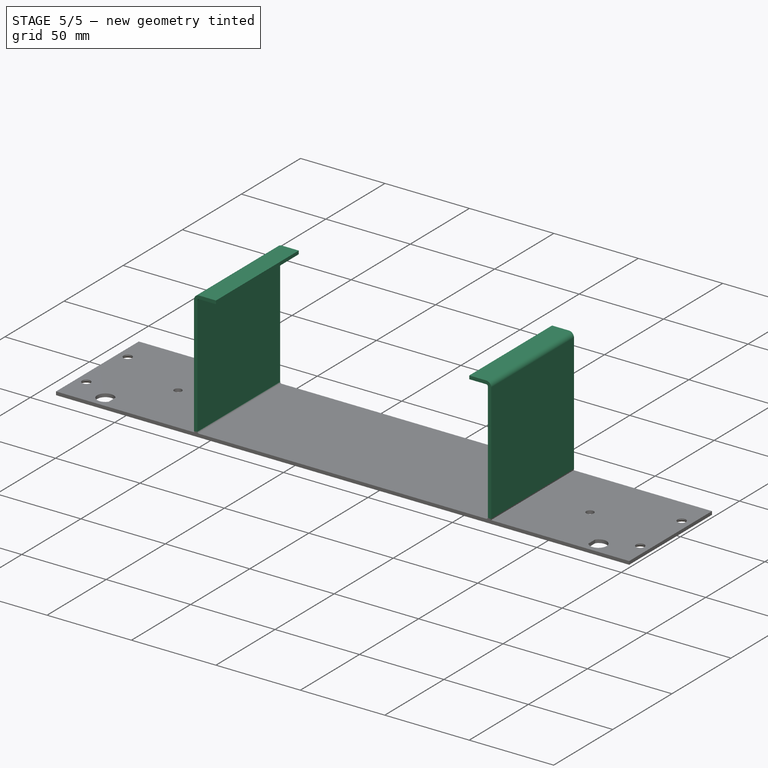
[diagram: stage 5 of 5 — iso view after this stage's code; geometry added in this stage tinted green]
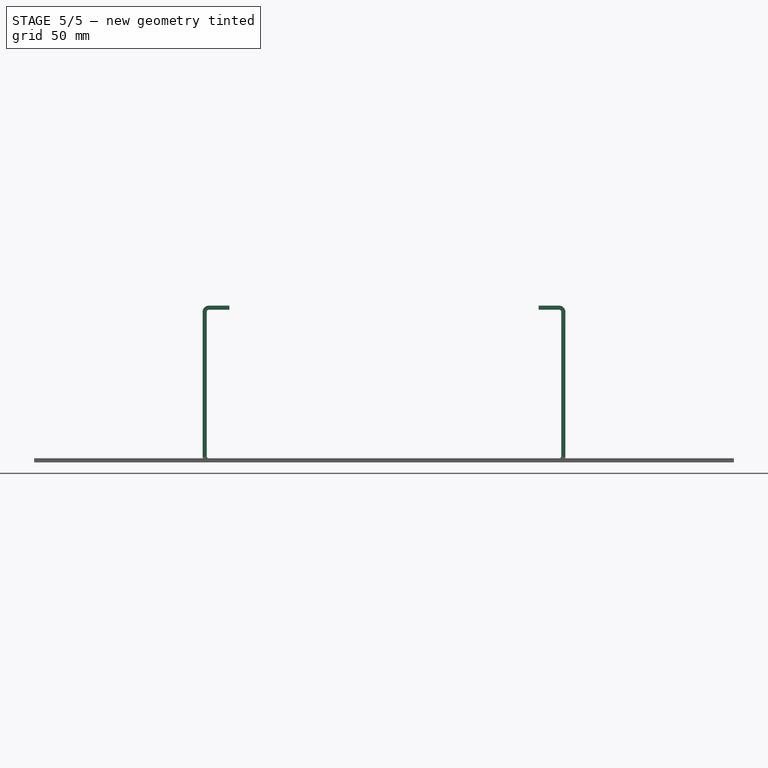
[diagram: stage 5 of 5 — front view after this stage's code; geometry added in this stage tinted green]
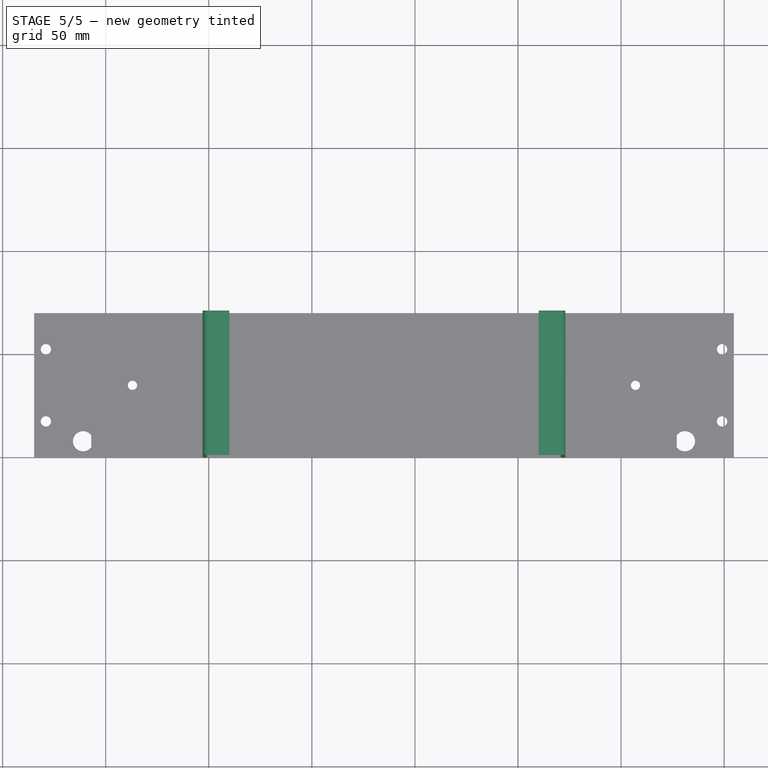
[diagram: stage 5 of 5 — top view after this stage's code; geometry added in this stage tinted green]
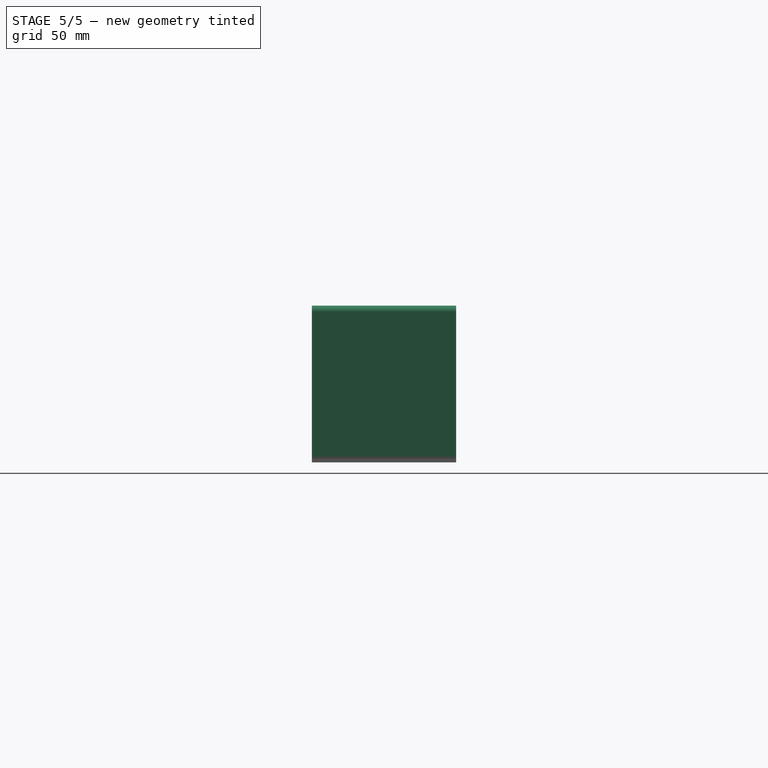
[diagram: stage 5 of 5 — right view after this stage's code; geometry added in this stage tinted green]
FEATURE [Part::FeaturePython] Bend  label="Left Wall"  # WARN: FeaturePython — macro-defined, semantics opaque (R4)
  angle = 90
  baseObject = -> Box [Face1]
  gap1 = 0
  gap2 = 0
  invert = false
  length = 70
  radius = 1
  reliefd = 1
  reliefw = 0.5
FEATURE [Part::FeaturePython] Bend001  label="Right Wall"  # WARN: FeaturePython — macro-defined, semantics opaque (R4)
  angle = 90
  baseObject = -> Bend [Face14]
  gap1 = 0
  gap2 = 0
  invert = false
  length = 70
  radius = 1
  reliefd = 1
  reliefw = 0.5
FEATURE [Part::FeaturePython] Bend002  label="Top Left Flange"  # WARN: FeaturePython — macro-defined, semantics opaque (R4)
  angle = 90
  baseObject = -> Bend001 [Face22]
  gap1 = 0
  gap2 = 0
  invert = false
  length = 10
  radius = 1
  reliefd = 1
  reliefw = 0.5
FEATURE [Part::FeaturePython] Bend003  label="Top Right Flange"  # WARN: FeaturePython — macro-defined, semantics opaque (R4)
  angle = 90
  baseObject = -> Bend002 [Face30]
  gap1 = 0
  gap2 = 0
  invert = false
  length = 10
  radius = 1
  reliefd = 1
  reliefw = 0.5
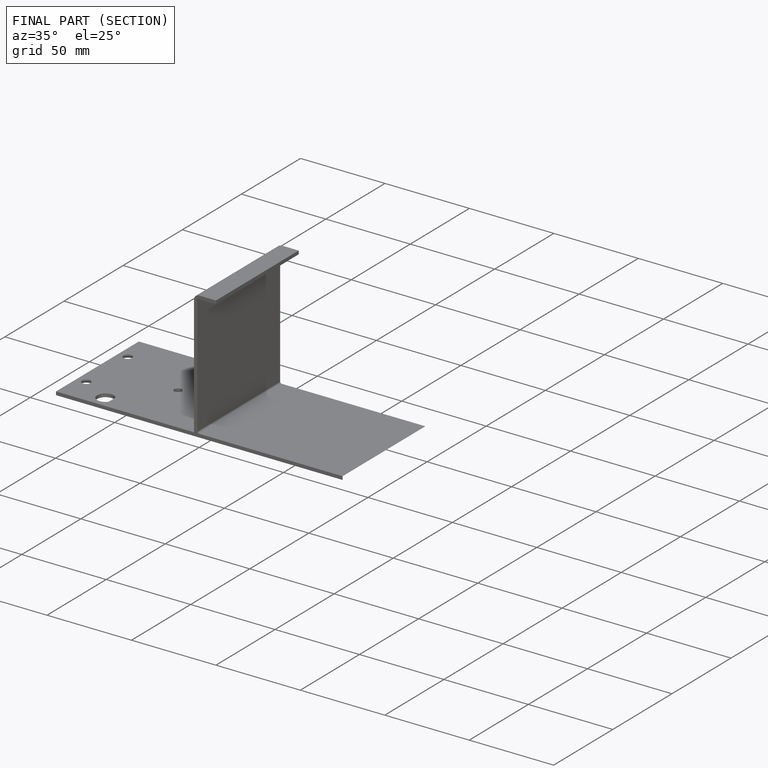
[diagram: finished part — half-section view (interior)]
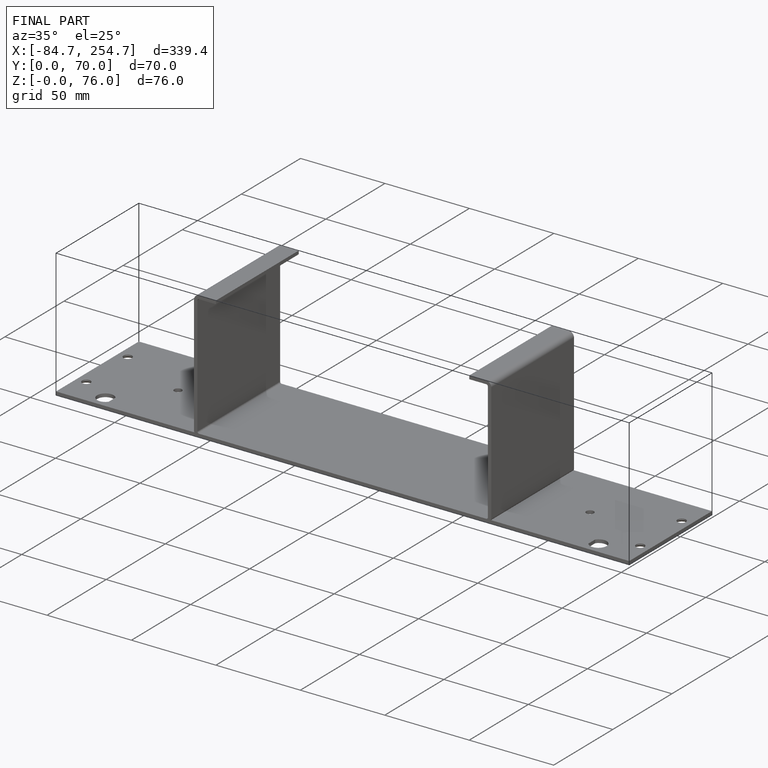
[diagram: finished part — iso view with bounding-box wireframe]
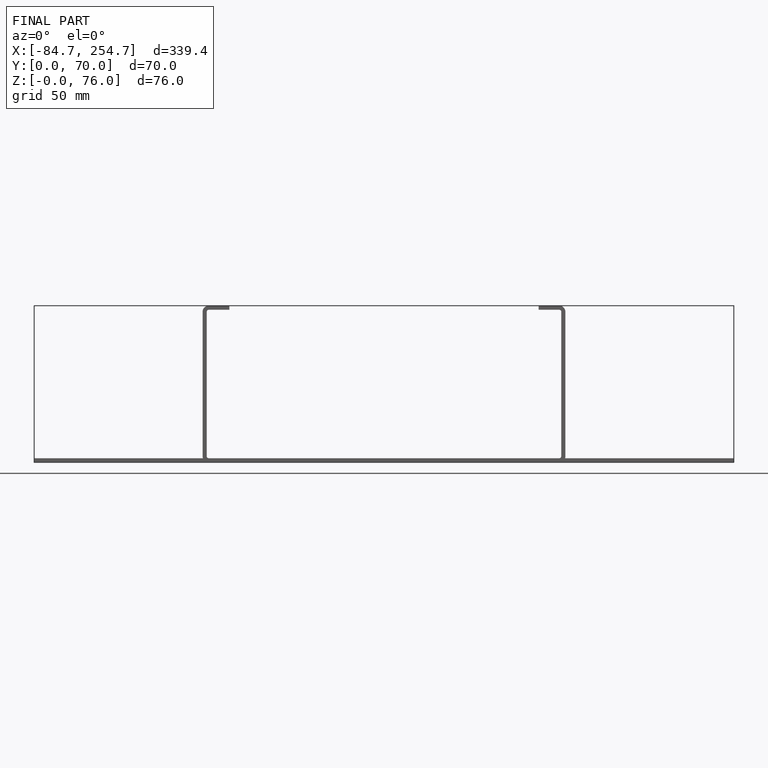
[diagram: finished part — front view with bounding-box wireframe]
